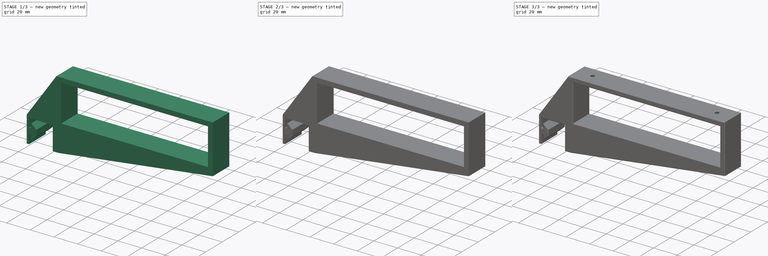
[diagram: build sequence overview — one tinted view per stage of 3, left to right]
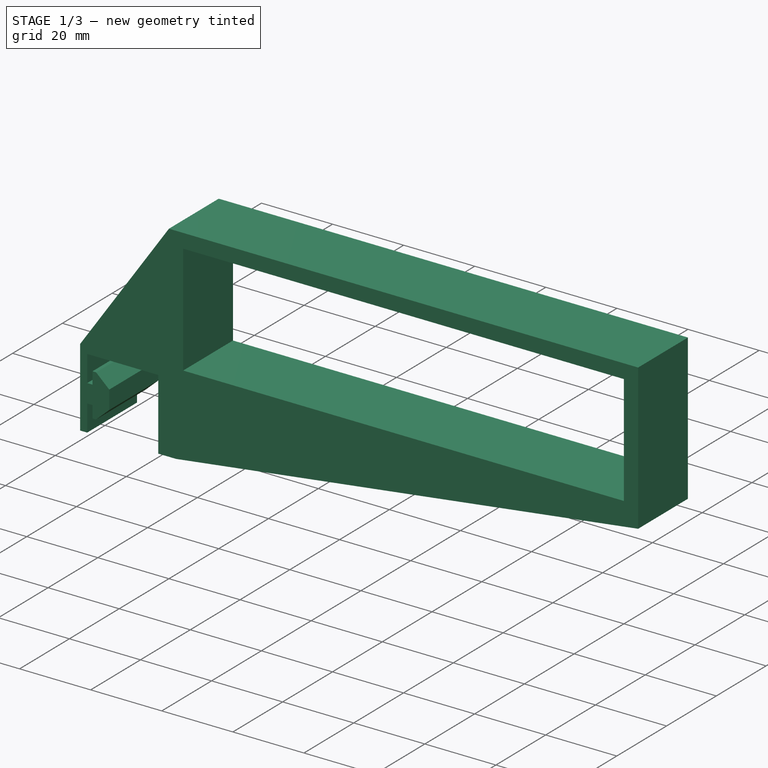
[diagram: stage 1 of 3 — iso view after this stage's code; geometry added in this stage tinted green]
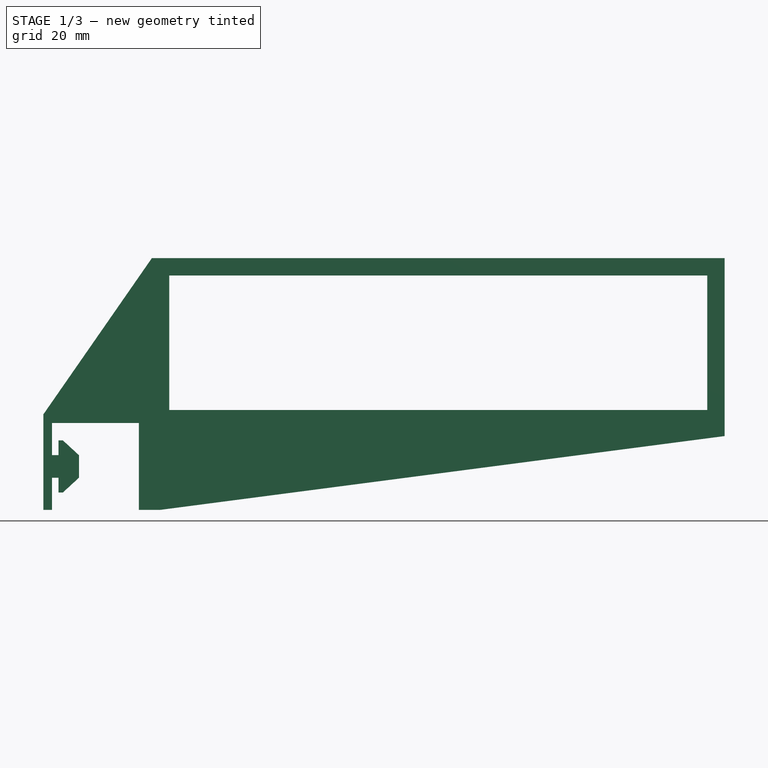
[diagram: stage 1 of 3 — front view after this stage's code; geometry added in this stage tinted green]
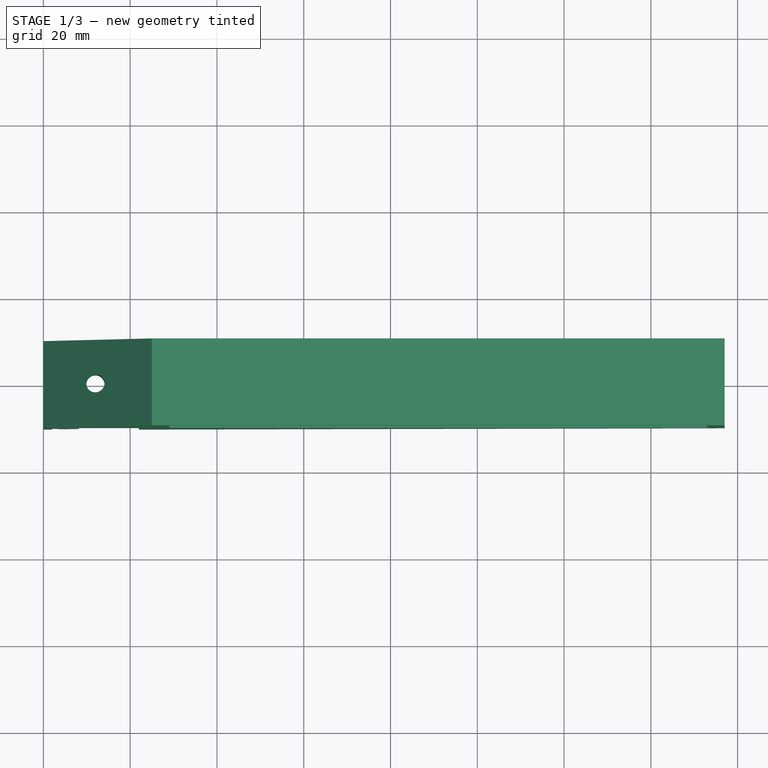
[diagram: stage 1 of 3 — top view after this stage's code; geometry added in this stage tinted green]
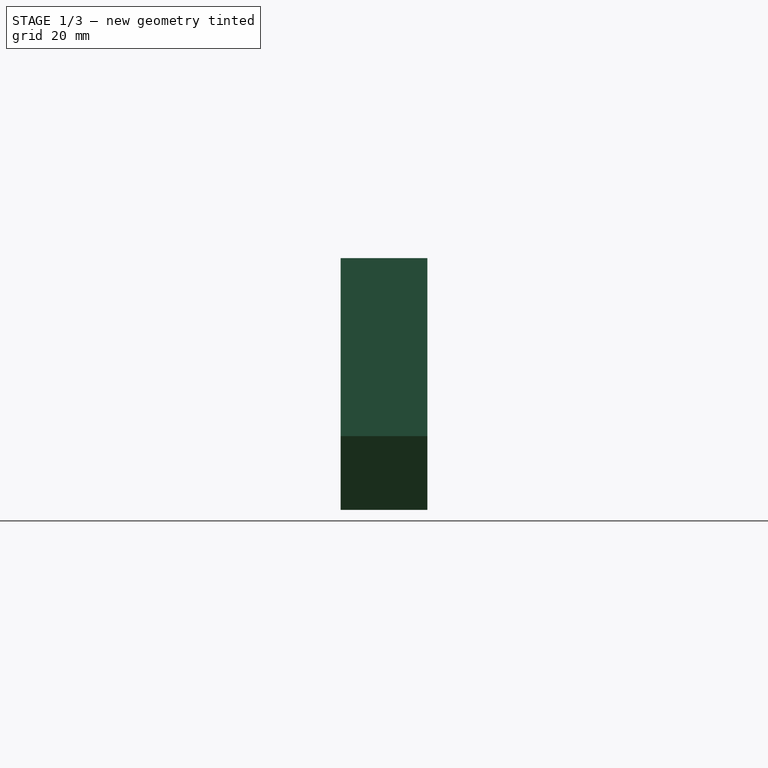
[diagram: stage 1 of 3 — right view after this stage's code; geometry added in this stage tinted green]
FCSTD DOCUMENT  (FreeCAD 2023.521R14555 (Git shallow))
Label: Rad_holder
License: All rights reserved
LicenseURL: https://en.wikipedia.org/wiki/All_rights_reserved
objects: Sketcher::SketchObject×4, PartDesign::Pocket×3, PartDesign::Fillet×2, PartDesign::Pad×1, PartDesign::Body×1
note: 27 computed .brp shape members not serialized (recipe doc carries the construction recipe); baked Part::Feature solids carry a one-line shape summary decoded from their .brp

FEATURE [Sketcher::SketchObject] Sketch
  ArcFitTolerance = 1e-06
  AttachmentSupport = -> [XZ_Plane]
  ExternalBSplineMaxDegree = 5
  ExternalBSplineTolerance = 0.0001
  FixShape = 1
  FullyConstrained = true
  InternalTolerance = 1e-06
  InvalidShape = false
  MakeInternals = false
  MapMode = 5
  Placement = pos=(0,0,0) rot=(1,0,0;1.5708rad)
  Support = -> [XZ_Plane]
  TreeRank = 11
  ValidateShape = false
  sketch-geometry (27):
    g0: LineSegment StartX=0 StartY=0 StartZ=0 EndX=0 EndY=-22 EndZ=0
    g1: LineSegment StartX=8.2 StartY=-14.6 StartZ=0 EndX=8.2 EndY=-9.4 EndZ=0
    g2: LineSegment StartX=3.5 StartY=-6 StartZ=0 EndX=3.5 EndY=-9.4 EndZ=0
    g3: LineSegment StartX=2 StartY=-9.4 StartZ=0 EndX=2 EndY=-2 EndZ=0
    g4: LineSegment StartX=2 StartY=-2 StartZ=0 EndX=22 EndY=-2 EndZ=0
    g5: LineSegment StartX=22 StartY=-2 StartZ=0 EndX=22 EndY=-22 EndZ=0
    g6: LineSegment StartX=22 StartY=-22 StartZ=0 EndX=27 EndY=-22 EndZ=0
    g7: LineSegment StartX=2 StartY=-9.4 StartZ=0 EndX=3.5 EndY=-9.4 EndZ=0
    g8: LineSegment StartX=3.5 StartY=-6 StartZ=0 EndX=4.5 EndY=-6 EndZ=0
    g9: LineSegment StartX=4.5 StartY=-6 StartZ=0 EndX=8.2 EndY=-9.4 EndZ=0
    g10: LineSegment StartX=8.2 StartY=-14.6 StartZ=0 EndX=4.5 EndY=-18 EndZ=0
    g11: LineSegment StartX=4.5 StartY=-18 StartZ=0 EndX=3.5 EndY=-18 EndZ=0
    g12: LineSegment StartX=3.5 StartY=-18 StartZ=0 EndX=3.5 EndY=-14.6 EndZ=0
    g13: LineSegment StartX=3.5 StartY=-14.6 StartZ=0 EndX=2 EndY=-14.6 EndZ=0
    g14: LineSegment StartX=2 StartY=-14.6 StartZ=0 EndX=2 EndY=-22 EndZ=0
    g15: LineSegment StartX=2 StartY=-22 StartZ=0 EndX=0 EndY=-22 EndZ=0
    g16: GeomPoint [constr] X=2 Y=-12 Z=0
    g17: LineSegment [constr] StartX=0 StartY=0 StartZ=0 EndX=157 EndY=0 EndZ=0
    g18: LineSegment StartX=27 StartY=-22 StartZ=0 EndX=157 EndY=-5 EndZ=0
    g19: LineSegment StartX=157 StartY=-5 StartZ=0 EndX=157 EndY=0 EndZ=0
    g20: LineSegment StartX=0 StartY=0 StartZ=0 EndX=25 EndY=36 EndZ=0
    g21: LineSegment StartX=157 StartY=0 StartZ=0 EndX=157 EndY=36 EndZ=0
    g22: LineSegment StartX=157 StartY=36 StartZ=0 EndX=25 EndY=36 EndZ=0
    g23: LineSegment StartX=29 StartY=32 StartZ=0 EndX=153 EndY=32 EndZ=0
    g24: LineSegment StartX=153 StartY=32 StartZ=0 EndX=153 EndY=1 EndZ=0
    g25: LineSegment StartX=153 StartY=1 StartZ=0 EndX=29 EndY=1 EndZ=0
    g26: LineSegment StartX=29 StartY=1 StartZ=0 EndX=29 EndY=32 EndZ=0
  constraints (77):
    c: Coincident(g0,g-1)
    c: Vertical(g0)
    c: Coincident(g4,g5)
    c: Coincident(g5,g6)
    c: Coincident(g3,g4)
    c: Coincident(g7,g3)
    c: Coincident(g2,g7)
    c: Vertical(g2)
    c: Horizontal(g7)
    c: DistanceX(g7,g7) = 1.5
    c: Vertical(g3)
    c: Vertical(g1)
    c: Coincident(g8,g2)
    c: Horizontal(g8)
    c: Coincident(g9,g8)
    c: Coincident(g9,g1)
    c: Coincident(g10,g1)
    c: Coincident(g11,g10)
    c: Coincident(g12,g11)
    c: Vertical(g12)
    c: Coincident(g13,g12)
    c: Coincident(g14,g13)
    c: Vertical(g14)
    c: Coincident(g15,g14)
    c: Coincident(g15,g0)
    c: Horizontal(g15)
    c: Horizontal(g13)
    c: Vertical(g3,g13)
    c: DistanceX(g15,g15) = 2
    c: Equal(g13,g7)
    c: Equal(g2,g12)
    c: Equal(g11,g8)
    c: Equal(g9,g10)
    c: DistanceY(g11,g2) = 12
    c: Horizontal(g2,g1)
    c: DistanceX(g2,g1) = 4.7
    c: DistanceY(g1,g1) = 5.2
    c: Symmetric(g3,g13,g16)
    c: DistanceY(g16,g3) = 10
    c: Horizontal(g4)
    c: Horizontal(g11)
    c: DistanceY(g14,g16) = 10
    c: DistanceY(g3,g0) = 2
    c: DistanceX(g8,g8) = 1
    c: DistanceX(g4,g4) = 20
    c: Vertical(g5)
    c: Horizontal(g6)
    c: Horizontal(g14,g5)
    c: Coincident(g17,g0)
    c: PointOnObject(g17,g-1)
    c: DistanceX(g6,g17) = 130
    c: Coincident(g18,g6)
    c: Coincident(g19,g18)
    c: Coincident(g19,g17)
    c: Vertical(g19)
    c: DistanceY(g19,g19) = 5
    c: DistanceX(g6,g6) = 5
    c: Coincident(g20,g0)
    c: Coincident(g21,g19)
    c: Vertical(g21)
    c: Coincident(g22,g21)
    c: Horizontal(g22)
    c: Coincident(g20,g22)
    c: DistanceY(g20,g20) = 36
    c: Coincident(g23,g24)
    c: Coincident(g24,g25)
    c: Coincident(g25,g26)
    c: Coincident(g26,g23)
    c: Horizontal(g23)
    c: Horizontal(g25)
    c: Vertical(g24)
    c: Vertical(g26)
    c: DistanceY(g26,g26) = 31
    c: DistanceX(g23,g23) = 124
    c: DistanceY(g23,g21) = 4
    c: DistanceX(g23,g21) = 4
    c: DistanceX(g20,g23) = 4
FEATURE [PartDesign::Pad] Pad
  AddSubType = 0
  AlongSketchNormal = false
  AutoTaperInnerAngle = true
  CheckUpToFaceLimits = true
  ClaimChildren = false
  Direction = (0,-1,2e-16)
  Fit = 0
  FitJoin = 0
  FixShape = 1
  InnerFit = 0
  InnerFitJoin = 0
  InvalidShape = false
  Length = 20
  Length2 = 10
  Linearize = true
  Midplane = true
  NewSolid = false
  Profile = -> Sketch
  ReferenceAxis = -> Sketch [N_Axis]
  Refine = true
  Suppress = false
  TaperInnerAngle = 0
  TaperInnerAngleRev = 0
  TreeRank = 12
  Type = 0
  ValidateShape = true
  _ProfileBasedVersion = 1
FEATURE [Sketcher::SketchObject] Sketch001
  ArcFitTolerance = 1e-06
  AttachmentOffset = pos=(0,0,-5) rot=(0,0,1;0rad)
  AttachmentSupport = -> [Pad]
  ExternalBSplineMaxDegree = 5
  ExternalBSplineTolerance = 0.0001
  ExternalGeometry = -> [Pad]
  FixShape = 1
  FullyConstrained = true
  InternalTolerance = 1e-06
  InvalidShape = false
  MakeInternals = false
  MapMode = 5
  Placement = pos=(0,7e-16,3) rot=(1,0,0;3.14159rad)
  Support = -> [Pad]
  TreeRank = 13
  ValidateShape = false
  sketch-geometry (1):
    g0: Circle CenterX=12 CenterY=0 CenterZ=0 NormalX=0 NormalY=0 NormalZ=1 AngleXU=0 Radius=2.1
  constraints (3):
    c: PointOnObject(g0,g-1)
    c: DistanceX(g-3,g0) = 10
    c: Diameter(g0) = 4.2
FEATURE [PartDesign::Pocket] Pocket
  AddSubType = 1
  AlongSketchNormal = false
  AutoTaperInnerAngle = true
  BaseFeature = -> Pad
  CheckUpToFaceLimits = true
  ClaimChildren = false
  Direction = (0,2e-16,1)
  Fit = 0
  FitJoin = 0
  FixShape = 1
  InnerFit = 0
  InnerFitJoin = 0
  InvalidShape = false
  Length = 5
  Length2 = 10
  Linearize = true
  Midplane = true
  NewSolid = false
  Profile = -> Sketch001
  ReferenceAxis = -> Sketch001 [N_Axis]
  Refine = true
  Suppress = false
  TaperInnerAngle = 0
  TaperInnerAngleRev = 0
  TreeRank = 14
  Type = 1
  ValidateShape = true
  _ProfileBasedVersion = 1
  _Version = 1
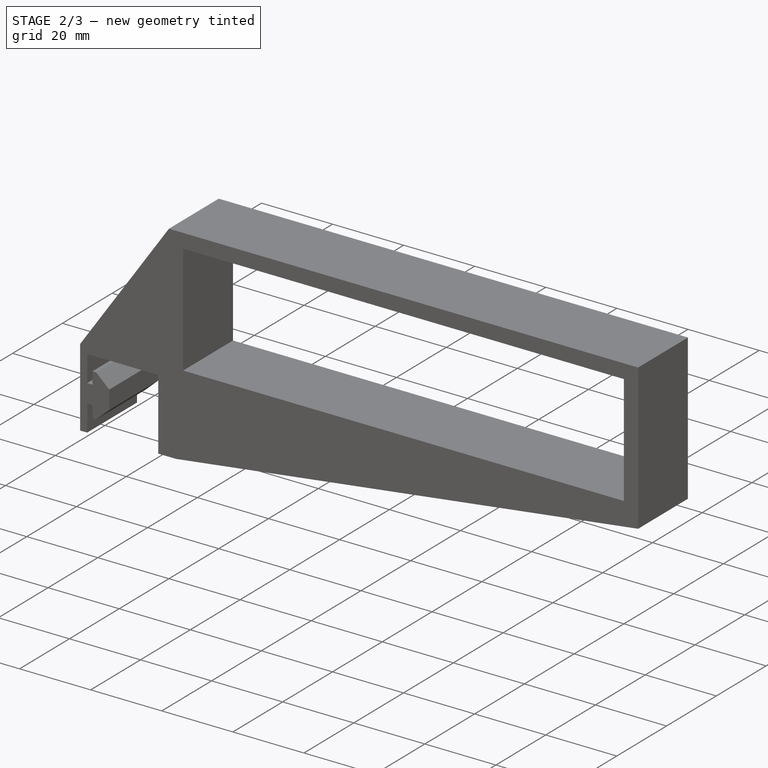
[diagram: stage 2 of 3 — iso view after this stage's code; geometry added in this stage tinted green]
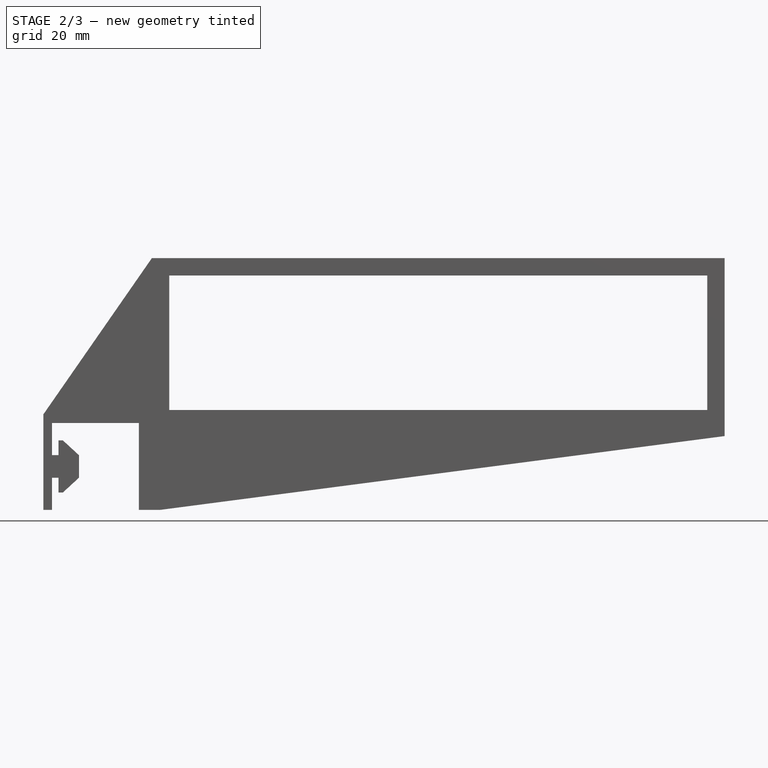
[diagram: stage 2 of 3 — front view after this stage's code; geometry added in this stage tinted green]
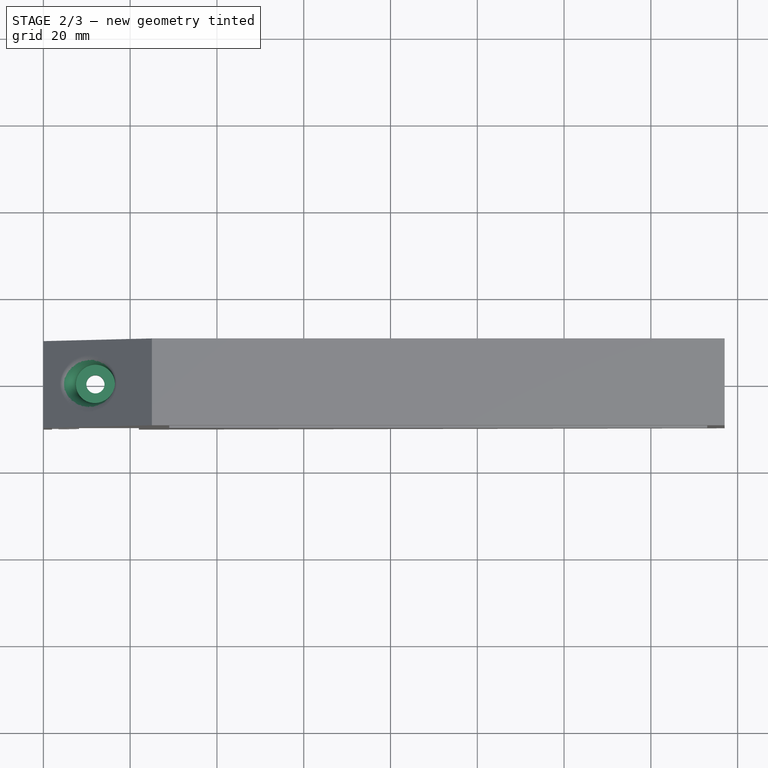
[diagram: stage 2 of 3 — top view after this stage's code; geometry added in this stage tinted green]
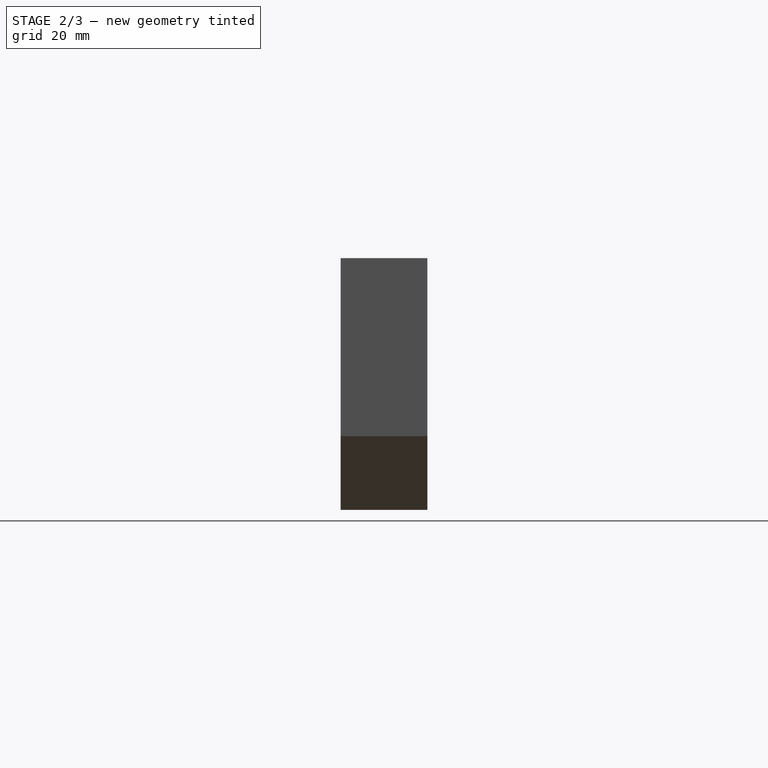
[diagram: stage 2 of 3 — right view after this stage's code; geometry added in this stage tinted green]
FEATURE [Sketcher::SketchObject] Sketch002
  ArcFitTolerance = 1e-06
  AttachmentOffset = pos=(0,0,-5) rot=(0,0,1;0rad)
  AttachmentSupport = -> [Pad]
  ExternalBSplineMaxDegree = 5
  ExternalBSplineTolerance = 0.0001
  ExternalGeometry = -> [Pad]
  FixShape = 1
  FullyConstrained = true
  InternalTolerance = 1e-06
  InvalidShape = false
  MakeInternals = false
  MapMode = 5
  Placement = pos=(0,7e-16,3) rot=(1,0,0;3.14159rad)
  Support = -> [Pad]
  TreeRank = 15
  ValidateShape = false
  sketch-geometry (1):
    g0: Circle CenterX=12 CenterY=0 CenterZ=0 NormalX=0 NormalY=0 NormalZ=1 AngleXU=0 Radius=4.5
  constraints (3):
    c: PointOnObject(g0,g-1)
    c: DistanceX(g-3,g0) = 10
    c: Diameter(g0) = 9
FEATURE [PartDesign::Pocket] Pocket001
  AddSubType = 1
  AlongSketchNormal = false
  AutoTaperInnerAngle = true
  BaseFeature = -> Pocket
  CheckUpToFaceLimits = true
  ClaimChildren = false
  Direction = (0,2e-16,1)
  Fit = 0
  FitJoin = 0
  FixShape = 1
  InnerFit = 0
  InnerFitJoin = 0
  InvalidShape = false
  Length = 5
  Length2 = 10
  Linearize = true
  NewSolid = false
  Profile = -> Sketch002
  ReferenceAxis = -> Sketch002 [N_Axis]
  Refine = true
  Suppress = false
  TaperInnerAngle = 0
  TaperInnerAngleRev = 0
  TreeRank = 16
  Type = 1
  ValidateShape = true
  _ProfileBasedVersion = 1
  _Version = 1
FEATURE [PartDesign::Fillet] Fillet
  AddSubType = 0
  Base = -> Pocket001 [Edge8]
  BaseFeature = -> Pocket001
  FixShape = 1
  InvalidShape = false
  NewSolid = false
  Radius = 2
  Refine = true
  SupportTransform = false
  Suppress = false
  TreeRank = 17
  UseAllEdges = false
  ValidateShape = true
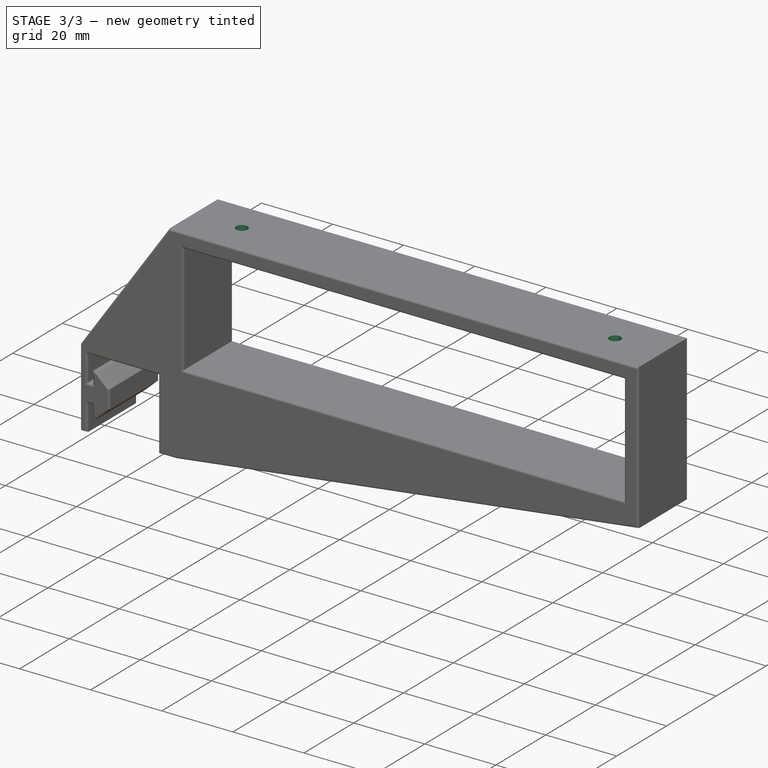
[diagram: stage 3 of 3 — iso view after this stage's code; geometry added in this stage tinted green]
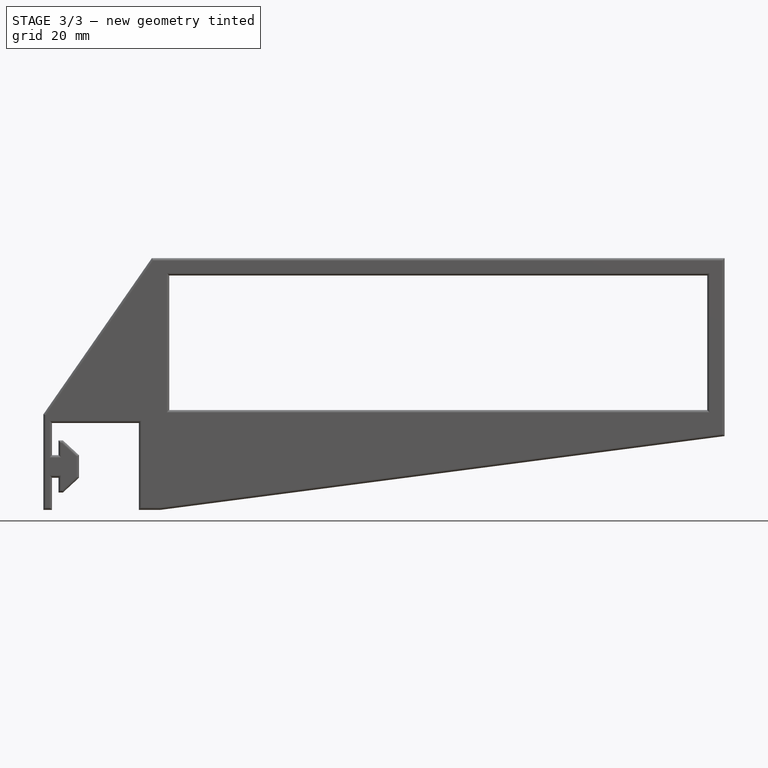
[diagram: stage 3 of 3 — front view after this stage's code; geometry added in this stage tinted green]
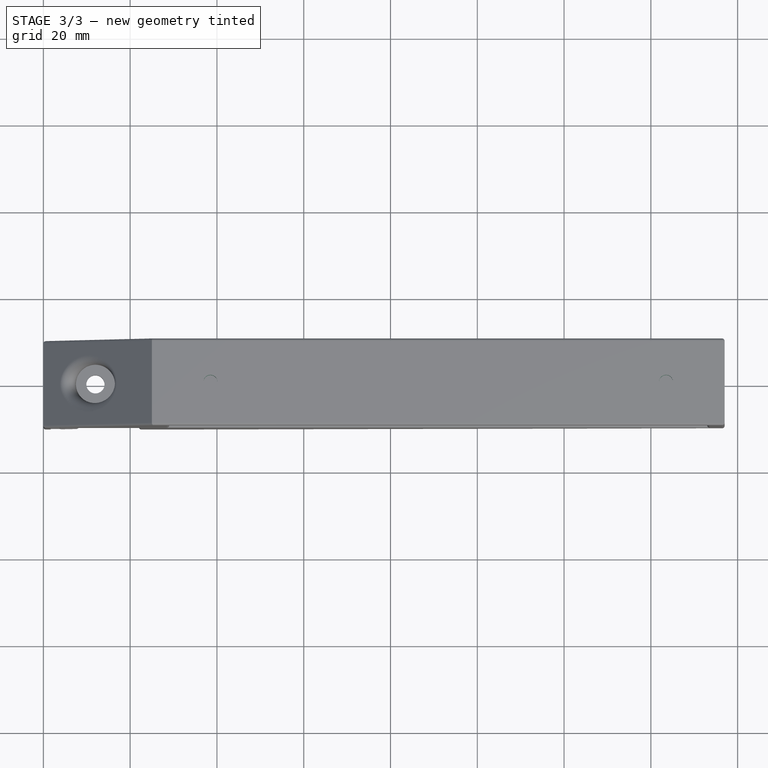
[diagram: stage 3 of 3 — top view after this stage's code; geometry added in this stage tinted green]
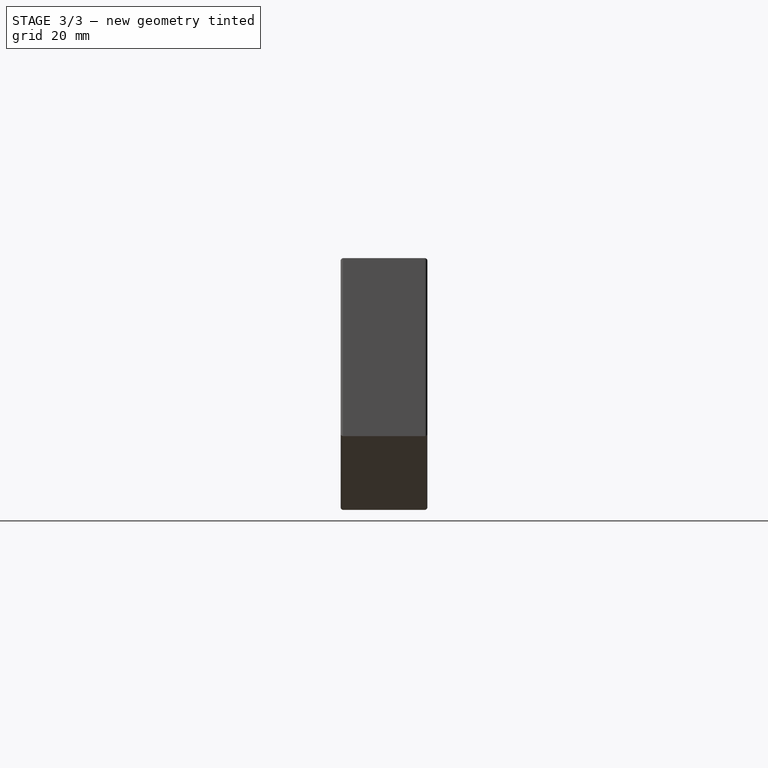
[diagram: stage 3 of 3 — right view after this stage's code; geometry added in this stage tinted green]
FEATURE [Sketcher::SketchObject] Sketch003
  ArcFitTolerance = 1e-06
  AttachmentSupport = -> [Fillet]
  ExternalBSplineMaxDegree = 5
  ExternalBSplineTolerance = 0.0001
  ExternalGeometry = -> [Fillet]
  FixShape = 1
  FullyConstrained = true
  InternalTolerance = 1e-06
  InvalidShape = false
  MakeInternals = false
  MapMode = 5
  Placement = pos=(0,7.1e-15,32) rot=(1,0,0;3.14159rad)
  Support = -> [Fillet]
  TreeRank = 18
  ValidateShape = false
  sketch-geometry (4):
    g0: Circle CenterX=38.5 CenterY=0 CenterZ=0 NormalX=0 NormalY=0 NormalZ=1 AngleXU=0 Radius=1.6
    g1: Circle CenterX=143.5 CenterY=0 CenterZ=0 NormalX=0 NormalY=0 NormalZ=1 AngleXU=0 Radius=1.6
    g2: GeomPoint [constr] X=91 Y=-10 Z=0
    g3: GeomPoint [constr] X=91 Y=0 Z=0
  constraints (8):
    c: PointOnObject(g0,g-1)
    c: PointOnObject(g1,g-1)
    c: DistanceX(g0,g1) = 105
    c: Symmetric(g-4,g-3,g2)
    c: Symmetric(g0,g1,g3)
    c: Vertical(g2,g3)
    c: Diameter(g1) = 3.2
    c: Equal(g1,g0)
FEATURE [PartDesign::Pocket] Pocket002
  AddSubType = 1
  AlongSketchNormal = false
  AutoTaperInnerAngle = true
  BaseFeature = -> Fillet
  CheckUpToFaceLimits = true
  ClaimChildren = false
  Direction = (0,2e-16,1)
  Fit = 0
  FitJoin = 0
  FixShape = 1
  InnerFit = 0
  InnerFitJoin = 0
  InvalidShape = false
  Length = 5
  Length2 = 10
  Linearize = true
  NewSolid = false
  Profile = -> Sketch003
  ReferenceAxis = -> Sketch003 [N_Axis]
  Refine = true
  Suppress = false
  TaperInnerAngle = 0
  TaperInnerAngleRev = 0
  TreeRank = 19
  Type = 1
  ValidateShape = true
  _ProfileBasedVersion = 1
  _Version = 1
FEATURE [PartDesign::Fillet] Fillet001
  AddSubType = 0
  Base = -> Pocket002 [Face5,Face4]
  BaseFeature = -> Pocket002
  FixShape = 1
  InvalidShape = false
  NewSolid = false
  Radius = 0.6
  Refine = true
  SupportTransform = false
  Suppress = false
  TreeRank = 20
  UseAllEdges = false
  ValidateShape = true
FEATURE [PartDesign::Body] Body
  AutoGroupSolids = false
  ClaimAllChildren = false
  ExportMode = 0
  FixShape = 1
  Group = -> [Sketch,Pad,Sketch001,Pocket,Sketch002,Pocket001,Fillet,Sketch003,Pocket002,Fillet001]
  InvalidShape = false
  Origin = -> Origin
  Tip = -> Fillet001
  TreeRank = 10
  ValidateShape = false
  _ExportChildren = -> [Pad,Pocket,Pocket001,Fillet,Pocket002,Fillet001]
  _GroupVersion = 1
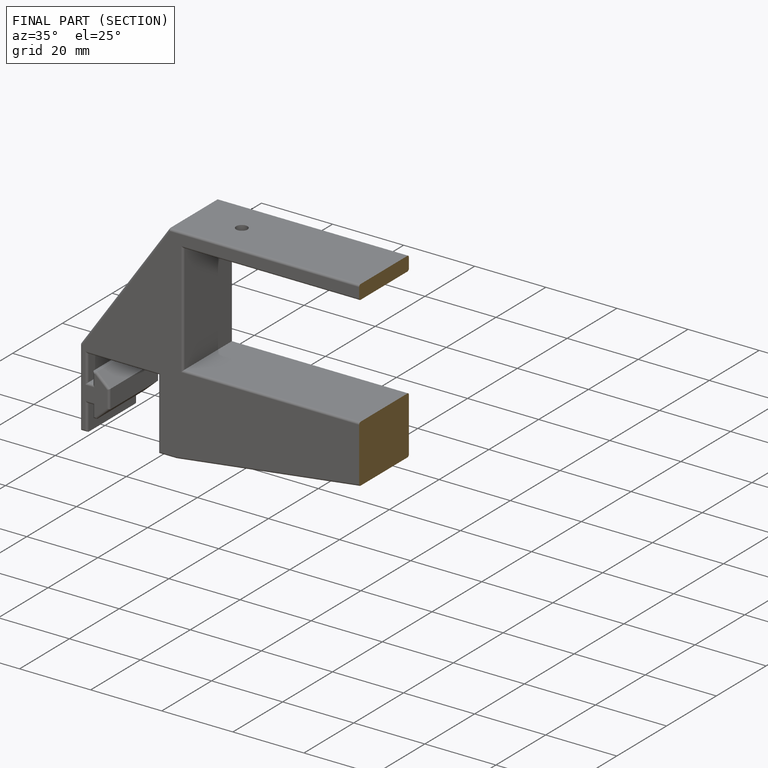
[diagram: finished part — half-section view (interior)]
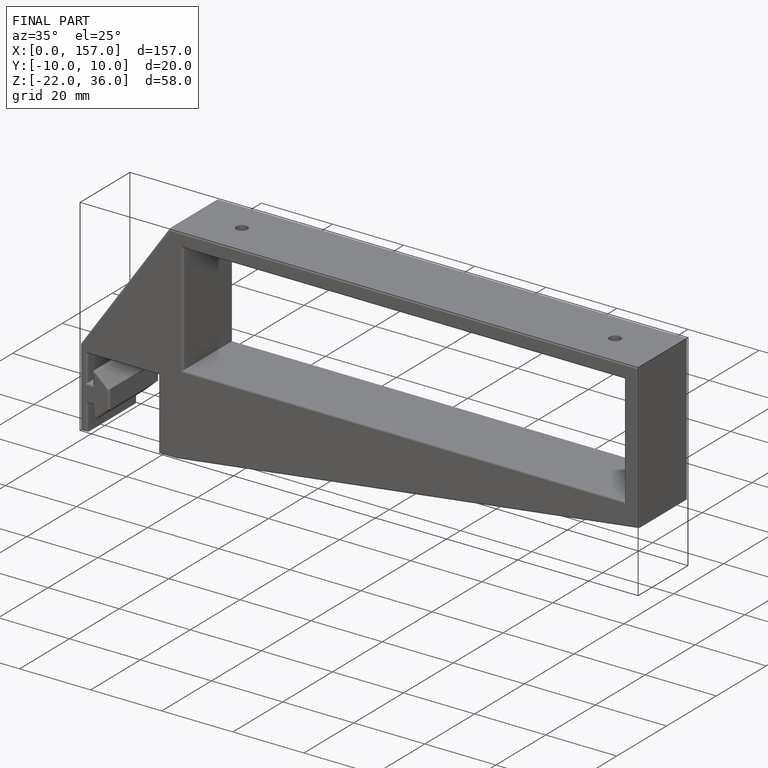
[diagram: finished part — iso view with bounding-box wireframe]
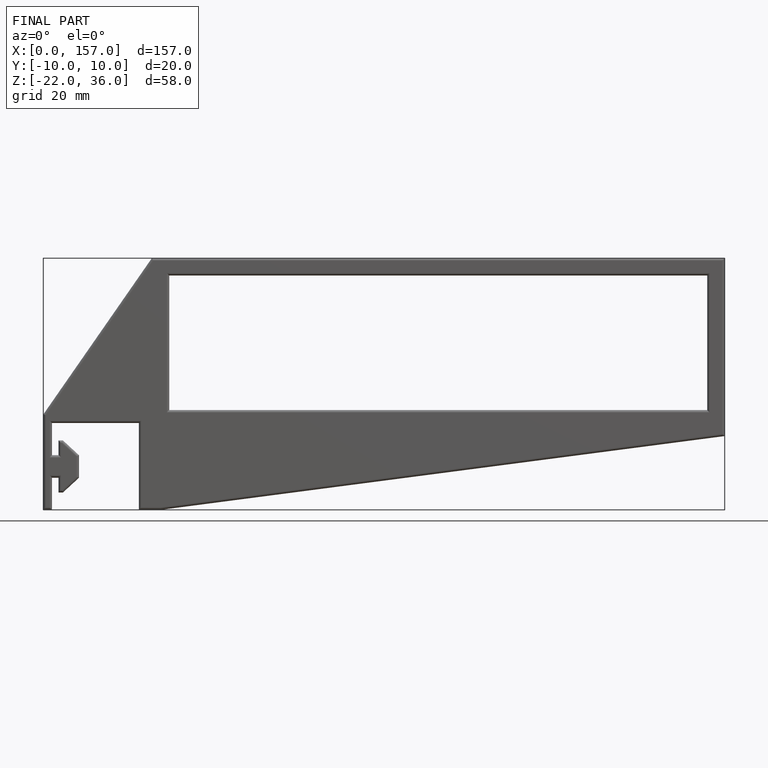
[diagram: finished part — front view with bounding-box wireframe]
